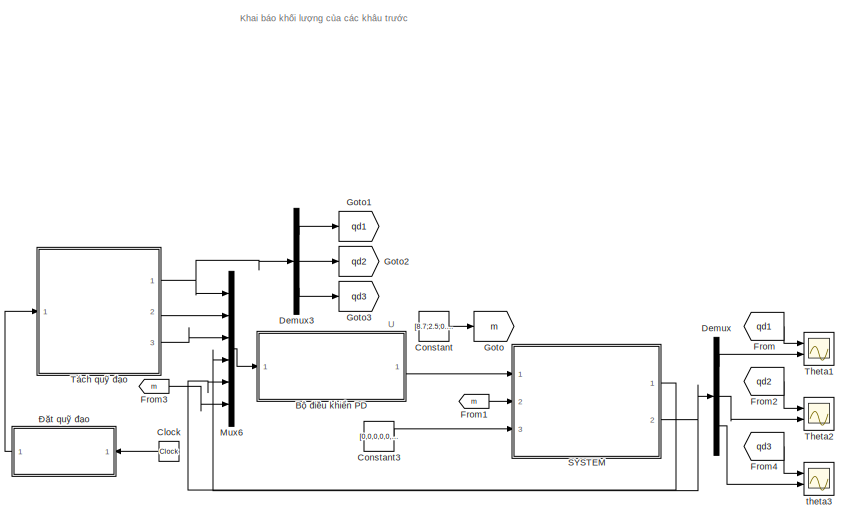
[diagram: root canvas - part 1/2, top right region]
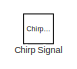
[diagram: root canvas - part 2/2, bottom left region]
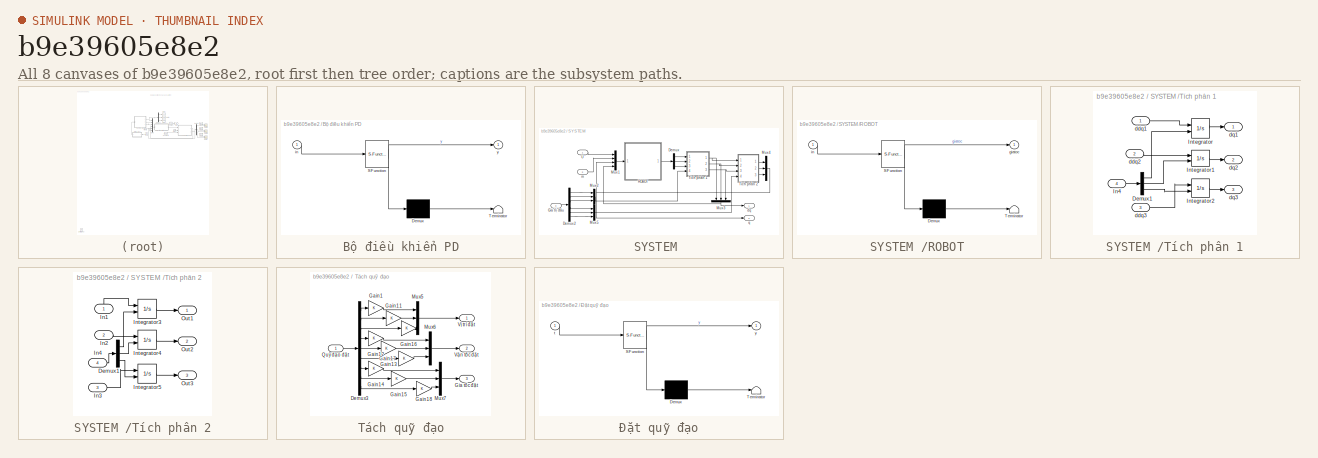
[diagram: thumbnail index - all 8 canvases of the model, root first then tree order]
MODEL slx_b9e39605e8e2
KIND model
CONFIG AbsTol = auto
CONFIG EnableMultiTasking = on
CONFIG FixedStep = 0.01
CONFIG MaxStep = auto
CONFIG MinStep = auto
CONFIG RelTol = 1e-3
CONFIG SampleTimeConstraint = Unconstrained
CONFIG Solver = FixedStepAuto
CONFIG SolverName = FixedStepAuto
CONFIG StartTime = 0.0
CONFIG StopTime = 7
BLOCK [SubSystem] Bộ điều khiển PD
  ErrorFcn = Stateflow.Translate.translate
  PermitHierarchicalResolution = ExplicitOnly
  Ports = [1, 1]
  RequestExecContextInheritance = off
  SFBlockType = MATLAB Function
  TreatAsAtomicUnit = on
BLOCK [Demux] Bộ điều khiển PD/ Demux 
  Outputs = 1
  Ports = [1, 1]
BLOCK [S-Function] Bộ điều khiển PD/ SFunction 
  EnableBusSupport = on
  FunctionName = sf_sfun
  PortCounts = [1 2]
  Ports = [1, 2]
  SFcnIsStateOwnerBlock = off
  SFunctionDeploymentMode = off
  Tag = Stateflow S-Function PD 3
BLOCK [Terminator] Bộ điều khiển PD/ Terminator 
BLOCK [Inport] Bộ điều khiển PD/in
  IconDisplay = Port number
BLOCK [Outport] Bộ điều khiển PD/y
  IconDisplay = Port number
BLOCK [Reference] Chirp Signal  REF=simulink/Sources/Chirp Signal
  IOType = siggen
  Ports = [0, 1]
  SourceBlock = simulink/Sources/Chirp Signal
  SourceProductBaseCode = SL
  SourceProductName = Simulink
  SourceType = chirp
BLOCK [Clock] Clock
  Decimation = 100
BLOCK [Constant] Constant
  Value = [8.7;2.5;0.5]
BLOCK [Constant] Constant3
  Value = [0,0,0,0,0,0.7]
BLOCK [Demux] Demux
  DisplayOption = bar
  Outputs = 3
  Ports = [1, 3]
BLOCK [Demux] Demux3
  DisplayOption = bar
  Outputs = 3
  Ports = [1, 3]
BLOCK [From] From
  GotoTag = qd1
BLOCK [From] From1
  GotoTag = m
BLOCK [From] From2
  GotoTag = qd2
BLOCK [From] From3
  GotoTag = m
BLOCK [From] From4
  GotoTag = qd3
BLOCK [Goto] Goto
  GotoTag = m
BLOCK [Goto] Goto1
  GotoTag = qd1
BLOCK [Goto] Goto2
  GotoTag = qd2
BLOCK [Goto] Goto3
  GotoTag = qd3
BLOCK [Mux] Mux6
  DisplayOption = bar
  Inputs = 6
  Ports = [6, 1]
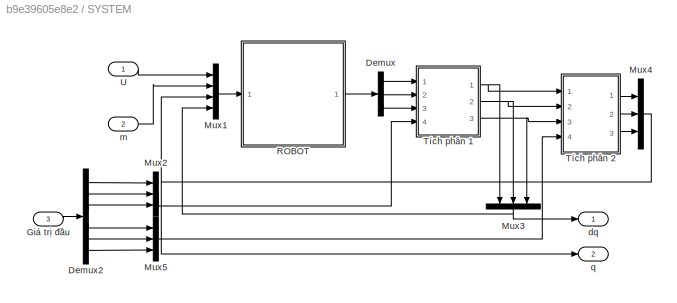
BLOCK [SubSystem] SYSTEM 
  Ports = [3, 2]
  RequestExecContextInheritance = off
BLOCK [Demux] SYSTEM /Demux
  DisplayOption = bar
  Outputs = 3
  Ports = [1, 3]
BLOCK [Demux] SYSTEM /Demux2
  DisplayOption = bar
  Outputs = 6
  Ports = [1, 6]
BLOCK [Inport] SYSTEM /Giá trị đầu
  IconDisplay = Port number
  Port = 3
BLOCK [Mux] SYSTEM /Mux1
  DisplayOption = bar
  Ports = [4, 1]
BLOCK [Mux] SYSTEM /Mux2
  DisplayOption = bar
  Inputs = 3
  Ports = [3, 1]
BLOCK [Mux] SYSTEM /Mux3
  DisplayOption = bar
  Inputs = 3
  Ports = [3, 1]
BLOCK [Mux] SYSTEM /Mux4
  DisplayOption = bar
  Inputs = 3
  Ports = [3, 1]
BLOCK [Mux] SYSTEM /Mux5
  DisplayOption = bar
  Inputs = 3
  Ports = [3, 1]
BLOCK [SubSystem] SYSTEM /ROBOT
  ErrorFcn = Stateflow.Translate.translate
  PermitHierarchicalResolution = ExplicitOnly
  Ports = [1, 1]
  RequestExecContextInheritance = off
  SFBlockType = MATLAB Function
  TreatAsAtomicUnit = on
BLOCK [Demux] SYSTEM /ROBOT/ Demux 
  Outputs = 1
  Ports = [1, 1]
BLOCK [S-Function] SYSTEM /ROBOT/ SFunction 
  EnableBusSupport = on
  FunctionName = sf_sfun
  PortCounts = [1 2]
  Ports = [1, 2]
  SFcnIsStateOwnerBlock = off
  SFunctionDeploymentMode = off
  Tag = Stateflow S-Function PD 4
BLOCK [Terminator] SYSTEM /ROBOT/ Terminator 
BLOCK [Outport] SYSTEM /ROBOT/giatoc
  IconDisplay = Port number
BLOCK [Inport] SYSTEM /ROBOT/in
  IconDisplay = Port number
BLOCK [SubSystem] SYSTEM /Tích phân 1
  Ports = [4, 3]
  RequestExecContextInheritance = off
BLOCK [Demux] SYSTEM /Tích phân 1/Demux1
  DisplayOption = bar
  Outputs = 3
  Ports = [1, 3]
BLOCK [Inport] SYSTEM /Tích phân 1/In4
  IconDisplay = Port number
  Port = 4
BLOCK [Integrator] SYSTEM /Tích phân 1/Integrator
  InitialConditionSource = external
  Ports = [2, 1]
BLOCK [Integrator] SYSTEM /Tích phân 1/Integrator1
  InitialConditionSource = external
  Ports = [2, 1]
BLOCK [Integrator] SYSTEM /Tích phân 1/Integrator2
  InitialConditionSource = external
  Ports = [2, 1]
BLOCK [Inport] SYSTEM /Tích phân 1/ddq1
  IconDisplay = Port number
BLOCK [Inport] SYSTEM /Tích phân 1/ddq2
  IconDisplay = Port number
  Port = 2
BLOCK [Inport] SYSTEM /Tích phân 1/ddq3
  IconDisplay = Port number
  Port = 3
BLOCK [Outport] SYSTEM /Tích phân 1/dq1
  IconDisplay = Port number
BLOCK [Outport] SYSTEM /Tích phân 1/dq2
  IconDisplay = Port number
  Port = 2
BLOCK [Outport] SYSTEM /Tích phân 1/dq3
  IconDisplay = Port number
  Port = 3
BLOCK [SubSystem] SYSTEM /Tích phân 2
  Ports = [4, 3]
  RequestExecContextInheritance = off
BLOCK [Demux] SYSTEM /Tích phân 2/Demux1
  DisplayOption = bar
  Outputs = 3
  Ports = [1, 3]
BLOCK [Inport] SYSTEM /Tích phân 2/In1
  IconDisplay = Port number
BLOCK [Inport] SYSTEM /Tích phân 2/In2
  IconDisplay = Port number
  Port = 2
BLOCK [Inport] SYSTEM /Tích phân 2/In3
  IconDisplay = Port number
  Port = 3
BLOCK [Inport] SYSTEM /Tích phân 2/In4
  IconDisplay = Port number
  Port = 4
BLOCK [Integrator] SYSTEM /Tích phân 2/Integrator3
  InitialConditionSource = external
  Ports = [2, 1]
BLOCK [Integrator] SYSTEM /Tích phân 2/Integrator4
  InitialConditionSource = external
  Ports = [2, 1]
BLOCK [Integrator] SYSTEM /Tích phân 2/Integrator5
  InitialConditionSource = external
  Ports = [2, 1]
BLOCK [Outport] SYSTEM /Tích phân 2/Out1
  IconDisplay = Port number
BLOCK [Outport] SYSTEM /Tích phân 2/Out2
  IconDisplay = Port number
  Port = 2
BLOCK [Outport] SYSTEM /Tích phân 2/Out3
  IconDisplay = Port number
  Port = 3
BLOCK [Inport] SYSTEM /U
  IconDisplay = Port number
BLOCK [Outport] SYSTEM /dq
  IconDisplay = Port number
BLOCK [Inport] SYSTEM /m
  IconDisplay = Port number
  Port = 2
BLOCK [Outport] SYSTEM /q
  IconDisplay = Port number
  Port = 2
BLOCK [Scope] Theta1
  Floating = off
  NumInputPorts = 2
  Ports = [2]
  ScopeSpecificationString = Simulink.scopes.TimeScopeBlockCfg('CurrentConfiguration', extmgr.ConfigurationSet(extmgr.Configuration('Core','General UI',true,'FigureColor',[1 1 1]),extmgr.Configuration('Core','Source UI',true),extmgr.Configuration('Sources','WiredSimulink',true,'DataLoggingVariableName','ScopeData1'),extmgr.Configuration('Visuals','Time Domain',true,'SerializedDisplays',{struct('MinYLimReal','0.1029','MaxYLimR...<+1833ch>
BLOCK [Scope] Theta2
  Floating = off
  NumInputPorts = 2
  Ports = [2]
  ScopeSpecificationString = Simulink.scopes.TimeScopeBlockCfg('CurrentConfiguration', extmgr.ConfigurationSet(extmgr.Configuration('Core','General UI',true,'FigureColor',[1 1 1]),extmgr.Configuration('Core','Source UI',true),extmgr.Configuration('Sources','WiredSimulink',true,'DataLoggingVariableName','ScopeData2'),extmgr.Configuration('Visuals','Time Domain',true,'SerializedDisplays',{struct('MinYLimReal','-0.19635','MaxYLi...<+1704ch>
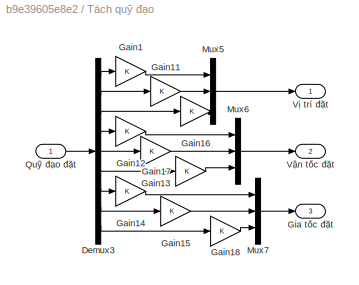
BLOCK [SubSystem] Tách quỹ đạo
  Ports = [1, 3]
  RequestExecContextInheritance = off
BLOCK [Demux] Tách quỹ đạo/Demux3
  DisplayOption = bar
  Outputs = 9
  Ports = [1, 9]
BLOCK [Gain] Tách quỹ đạo/Gain1
  OutDataTypeStr = Inherit: Inherit via internal rule
  ParamDataTypeStr = Inherit: Inherit via internal rule
  SaturateOnIntegerOverflow = off
BLOCK [Gain] Tách quỹ đạo/Gain11
  OutDataTypeStr = Inherit: Inherit via internal rule
  ParamDataTypeStr = Inherit: Inherit via internal rule
  SaturateOnIntegerOverflow = off
BLOCK [Gain] Tách quỹ đạo/Gain12
  OutDataTypeStr = Inherit: Inherit via internal rule
  ParamDataTypeStr = Inherit: Inherit via internal rule
  SaturateOnIntegerOverflow = off
BLOCK [Gain] Tách quỹ đạo/Gain13
  OutDataTypeStr = Inherit: Inherit via internal rule
  ParamDataTypeStr = Inherit: Inherit via internal rule
  SaturateOnIntegerOverflow = off
BLOCK [Gain] Tách quỹ đạo/Gain14
  OutDataTypeStr = Inherit: Inherit via internal rule
  ParamDataTypeStr = Inherit: Inherit via internal rule
  SaturateOnIntegerOverflow = off
BLOCK [Gain] Tách quỹ đạo/Gain15
  OutDataTypeStr = Inherit: Inherit via internal rule
  ParamDataTypeStr = Inherit: Inherit via internal rule
  SaturateOnIntegerOverflow = off
BLOCK [Gain] Tách quỹ đạo/Gain16
  OutDataTypeStr = Inherit: Inherit via internal rule
  ParamDataTypeStr = Inherit: Inherit via internal rule
  SaturateOnIntegerOverflow = off
BLOCK [Gain] Tách quỹ đạo/Gain17
  OutDataTypeStr = Inherit: Inherit via internal rule
  ParamDataTypeStr = Inherit: Inherit via internal rule
  SaturateOnIntegerOverflow = off
BLOCK [Gain] Tách quỹ đạo/Gain18
  OutDataTypeStr = Inherit: Inherit via internal rule
  ParamDataTypeStr = Inherit: Inherit via internal rule
  SaturateOnIntegerOverflow = off
BLOCK [Outport] Tách quỹ đạo/Gia tốc đặt
  IconDisplay = Port number
  Port = 3
BLOCK [Mux] Tách quỹ đạo/Mux5
  DisplayOption = bar
  Inputs = 3
  Ports = [3, 1]
BLOCK [Mux] Tách quỹ đạo/Mux6
  DisplayOption = bar
  Inputs = 3
  Ports = [3, 1]
BLOCK [Mux] Tách quỹ đạo/Mux7
  DisplayOption = bar
  Inputs = 3
  Ports = [3, 1]
BLOCK [Inport] Tách quỹ đạo/Quỹ đạo đặt
  IconDisplay = Port number
BLOCK [Outport] Tách quỹ đạo/Vận tốc đặt
  IconDisplay = Port number
  Port = 2
BLOCK [Outport] Tách quỹ đạo/Vị trí đặt
  IconDisplay = Port number
BLOCK [Scope] theta3
  Floating = off
  NumInputPorts = 2
  Ports = [2]
  ScopeSpecificationString = Simulink.scopes.TimeScopeBlockCfg('CurrentConfiguration', extmgr.ConfigurationSet(extmgr.Configuration('Core','General UI',true,'FigureColor',[1 1 1]),extmgr.Configuration('Core','Source UI',true),extmgr.Configuration('Sources','WiredSimulink',true,'DataLoggingVariableName','ScopeData3'),extmgr.Configuration('Visuals','Time Domain',true,'SerializedDisplays',{struct('MinYLimReal','-0.29452','MaxYLi...<+1704ch>
BLOCK [SubSystem] Đặt quỹ đạo
  ErrorFcn = Stateflow.Translate.translate
  PermitHierarchicalResolution = ExplicitOnly
  Ports = [1, 1]
  RequestExecContextInheritance = off
  SFBlockType = MATLAB Function
  TreatAsAtomicUnit = on
BLOCK [Demux] Đặt quỹ đạo/ Demux 
  Outputs = 1
  Ports = [1, 1]
BLOCK [S-Function] Đặt quỹ đạo/ SFunction 
  EnableBusSupport = on
  FunctionName = sf_sfun
  PortCounts = [1 2]
  Ports = [1, 2]
  SFcnIsStateOwnerBlock = off
  SFunctionDeploymentMode = off
  Tag = Stateflow S-Function PD 2
BLOCK [Terminator] Đặt quỹ đạo/ Terminator 
BLOCK [Inport] Đặt quỹ đạo/t
  IconDisplay = Port number
BLOCK [Outport] Đặt quỹ đạo/y
  IconDisplay = Port number
ANNOTATION (root): Khai báo khối lượng của các khâu trước
ANNOTATION (root): U
LINE Bộ điều khiển PD:1 -> SYSTEM :1
LINE Clock:1 -> Đặt quỹ đạo:1
LINE Constant3:1 -> SYSTEM :3
LINE Constant:1 -> Goto:1
LINE Demux3:1 -> Goto1:1
LINE Demux3:2 -> Goto2:1
LINE Demux3:3 -> Goto3:1
LINE Demux:1 -> Theta1:2
LINE Demux:2 -> Theta2:2
LINE Demux:3 -> theta3:2
LINE From1:1 -> SYSTEM :2
LINE From2:1 -> Theta2:1
LINE From3:1 -> Mux6:6
LINE From4:1 -> theta3:1
LINE From:1 -> Theta1:1
LINE Mux6:1 -> Bộ điều khiển PD:1
LINE SYSTEM /Demux2:1 -> SYSTEM /Mux2:1
LINE SYSTEM /Demux2:2 -> SYSTEM /Mux2:2
LINE SYSTEM /Demux2:3 -> SYSTEM /Mux2:3
LINE SYSTEM /Demux2:4 -> SYSTEM /Mux5:1
LINE SYSTEM /Demux2:5 -> SYSTEM /Mux5:2
LINE SYSTEM /Demux2:6 -> SYSTEM /Mux5:3
LINE SYSTEM /Demux:1 -> SYSTEM /Tích phân 1:1
LINE SYSTEM /Demux:2 -> SYSTEM /Tích phân 1:2
LINE SYSTEM /Demux:3 -> SYSTEM /Tích phân 1:3
LINE SYSTEM /Giá trị đầu:1 -> SYSTEM /Demux2:1
LINE SYSTEM /Mux1:1 -> SYSTEM /ROBOT:1
LINE SYSTEM /Mux2:1 -> SYSTEM /Tích phân 1:4
NET SYSTEM /Mux3:1 -> SYSTEM /Mux1:4, SYSTEM /dq:1
NET SYSTEM /Mux4:1 -> SYSTEM /Mux1:3, SYSTEM /q:1
LINE SYSTEM /Mux5:1 -> SYSTEM /Tích phân 2:4
LINE SYSTEM /ROBOT:1 -> SYSTEM /Demux:1
LINE SYSTEM /Tích phân 1/Demux1:1 -> SYSTEM /Tích phân 1/Integrator:2
LINE SYSTEM /Tích phân 1/Demux1:2 -> SYSTEM /Tích phân 1/Integrator1:2
LINE SYSTEM /Tích phân 1/Demux1:3 -> SYSTEM /Tích phân 1/Integrator2:2
LINE SYSTEM /Tích phân 1/In4:1 -> SYSTEM /Tích phân 1/Demux1:1
LINE SYSTEM /Tích phân 1/Integrator1:1 -> SYSTEM /Tích phân 1/dq2:1
LINE SYSTEM /Tích phân 1/Integrator2:1 -> SYSTEM /Tích phân 1/dq3:1
LINE SYSTEM /Tích phân 1/Integrator:1 -> SYSTEM /Tích phân 1/dq1:1
LINE SYSTEM /Tích phân 1/ddq1:1 -> SYSTEM /Tích phân 1/Integrator:1
LINE SYSTEM /Tích phân 1/ddq2:1 -> SYSTEM /Tích phân 1/Integrator1:1
LINE SYSTEM /Tích phân 1/ddq3:1 -> SYSTEM /Tích phân 1/Integrator2:1
NET SYSTEM /Tích phân 1:1 -> SYSTEM /Mux3:1, SYSTEM /Tích phân 2:1
NET SYSTEM /Tích phân 1:2 -> SYSTEM /Mux3:2, SYSTEM /Tích phân 2:2
NET SYSTEM /Tích phân 1:3 -> SYSTEM /Mux3:3, SYSTEM /Tích phân 2:3
LINE SYSTEM /Tích phân 2/Demux1:1 -> SYSTEM /Tích phân 2/Integrator3:2
LINE SYSTEM /Tích phân 2/Demux1:2 -> SYSTEM /Tích phân 2/Integrator4:2
LINE SYSTEM /Tích phân 2/Demux1:3 -> SYSTEM /Tích phân 2/Integrator5:2
LINE SYSTEM /Tích phân 2/In1:1 -> SYSTEM /Tích phân 2/Integrator3:1
LINE SYSTEM /Tích phân 2/In2:1 -> SYSTEM /Tích phân 2/Integrator4:1
LINE SYSTEM /Tích phân 2/In3:1 -> SYSTEM /Tích phân 2/Integrator5:1
LINE SYSTEM /Tích phân 2/In4:1 -> SYSTEM /Tích phân 2/Demux1:1
LINE SYSTEM /Tích phân 2/Integrator3:1 -> SYSTEM /Tích phân 2/Out1:1
LINE SYSTEM /Tích phân 2/Integrator4:1 -> SYSTEM /Tích phân 2/Out2:1
LINE SYSTEM /Tích phân 2/Integrator5:1 -> SYSTEM /Tích phân 2/Out3:1
LINE SYSTEM /Tích phân 2:1 -> SYSTEM /Mux4:1
LINE SYSTEM /Tích phân 2:2 -> SYSTEM /Mux4:2
LINE SYSTEM /Tích phân 2:3 -> SYSTEM /Mux4:3
LINE SYSTEM /U:1 -> SYSTEM /Mux1:1
LINE SYSTEM /m:1 -> SYSTEM /Mux1:2
LINE SYSTEM :1 -> Mux6:5
NET SYSTEM :2 -> Demux:1, Mux6:4
LINE Tách quỹ đạo/Demux3:1 -> Tách quỹ đạo/Gain1:1
LINE Tách quỹ đạo/Demux3:2 -> Tách quỹ đạo/Gain11:1
LINE Tách quỹ đạo/Demux3:3 -> Tách quỹ đạo/Gain16:1
LINE Tách quỹ đạo/Demux3:4 -> Tách quỹ đạo/Gain12:1
LINE Tách quỹ đạo/Demux3:5 -> Tách quỹ đạo/Gain13:1
LINE Tách quỹ đạo/Demux3:6 -> Tách quỹ đạo/Gain17:1
LINE Tách quỹ đạo/Demux3:7 -> Tách quỹ đạo/Gain14:1
LINE Tách quỹ đạo/Demux3:8 -> Tách quỹ đạo/Gain15:1
LINE Tách quỹ đạo/Demux3:9 -> Tách quỹ đạo/Gain18:1
LINE Tách quỹ đạo/Gain11:1 -> Tách quỹ đạo/Mux5:2
LINE Tách quỹ đạo/Gain12:1 -> Tách quỹ đạo/Mux6:1
LINE Tách quỹ đạo/Gain13:1 -> Tách quỹ đạo/Mux6:2
LINE Tách quỹ đạo/Gain14:1 -> Tách quỹ đạo/Mux7:1
LINE Tách quỹ đạo/Gain15:1 -> Tách quỹ đạo/Mux7:2
LINE Tách quỹ đạo/Gain16:1 -> Tách quỹ đạo/Mux5:3
LINE Tách quỹ đạo/Gain17:1 -> Tách quỹ đạo/Mux6:3
LINE Tách quỹ đạo/Gain18:1 -> Tách quỹ đạo/Mux7:3
LINE Tách quỹ đạo/Gain1:1 -> Tách quỹ đạo/Mux5:1
LINE Tách quỹ đạo/Mux5:1 -> Tách quỹ đạo/Vị trí đặt:1
LINE Tách quỹ đạo/Mux6:1 -> Tách quỹ đạo/Vận tốc đặt:1
LINE Tách quỹ đạo/Mux7:1 -> Tách quỹ đạo/Gia tốc đặt:1
LINE Tách quỹ đạo/Quỹ đạo đặt:1 -> Tách quỹ đạo/Demux3:1
NET Tách quỹ đạo:1 -> Demux3:1, Mux6:1
LINE Tách quỹ đạo:2 -> Mux6:2
LINE Tách quỹ đạo:3 -> Mux6:3
LINE Đặt quỹ đạo:1 -> Tách quỹ đạo:1
note: NET lines group one-source signal fan-out (src -> all destinations, sorted); 1:1 wires keep LINE
CHART Đặt quỹ đạo states=1 transitions=1
  STATE_LABEL 'eML_blk_kernel()'
  STATE_LABEL 'SCRIPT:\nfunction y = Quy_dao(t)\n%gioi han tung khop\nqd1 = (2*pi/3)*sin(t/4);\nqd2 = (pi/2)*sin(t/4);\nqd3 = (3*pi/4)*sin(t/4);\n\nvd1 = (pi/6)*cos(t/4);\nvd2 = (pi/8)*cos(t/4);\nvd3 = (3*pi/16)*cos(t/4);\n\nad1 = (-pi/24)*sin(t/4);\nad2 = (-pi/32)*sin(t/4);\nad3 = (-3*pi/64)*sin(t/4);\n\ndaura = [qd1;qd2;qd3;vd1;vd2;vd3;ad1;ad2;ad3];\ny = daura;\nend\n'
CHART Bộ điều khiển PD states=1 transitions=1
  STATE_LABEL 'eML_blk_kernel()'
  STATE_LABEL 'SCRIPT:\nfunction y = dieukhien(in)\n%#codegen:\n% Dau vao: \nQD = in(1:3); VD = in(4:6);AD = in(7:9); Q = in(10:12); V = in(13:15);\nqd1  =QD(1); qd2  = QD(2); qd3 = QD(3) ; vd1 = VD(1); vd2 = VD(2); vd3 = VD(3);\nad1 = AD(1); ad2 = AD(2); ad3 = AD(3);MV = in(16:18);\nq1 = Q(1); q2 = Q(2); q3 = Q(3); dq1 = V(1); dq2 = V(2); dq3 = V(3);\nqd = [qd1;qd2;qd3]; vd = [vd1;vd2;vd3]; ad = [ad1;ad2;ad3];\nq = [q1;...<+2405ch>'
CHART SYSTEM /ROBOT states=1 transitions=1
  STATE_LABEL 'eML_blk_kernel()'
  STATE_LABEL 'SCRIPT:\nfunction giatoc = system(in)\n%#codegen:\n% Dau vao: \nUV= in(1:3); QV  = in(7:9); VV = in(10:12); MV = in(4:6);\nq1  =QV(1); q2  = QV(2); q3 = QV(3) ; dq1 = VV(1); dq2 = VV(2); dq3 = VV(3);\nu1  = UV(1); u2 = UV(2) ; u3 = UV(3);\n\n% Khai bao cac dai luong \na1 = 1.25; a2 = 1.25; a3 = 0.75; l1 = a1/2; l2 = a2/2; l3 = a3/2; % DV : m\n% m1 = MV(1); m2 = MV(2); m3 = MV(3); % DV kg\nm1 = 336.08 ; m2 = ...<+2201ch>'
